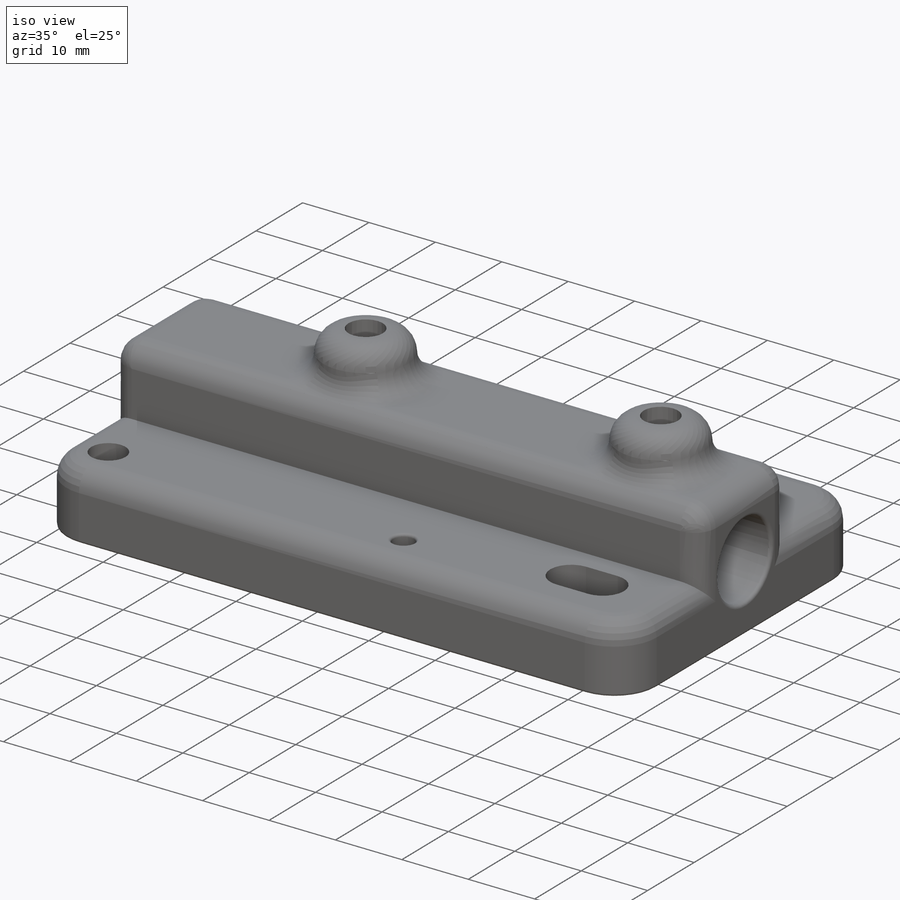
[diagram: iso view]
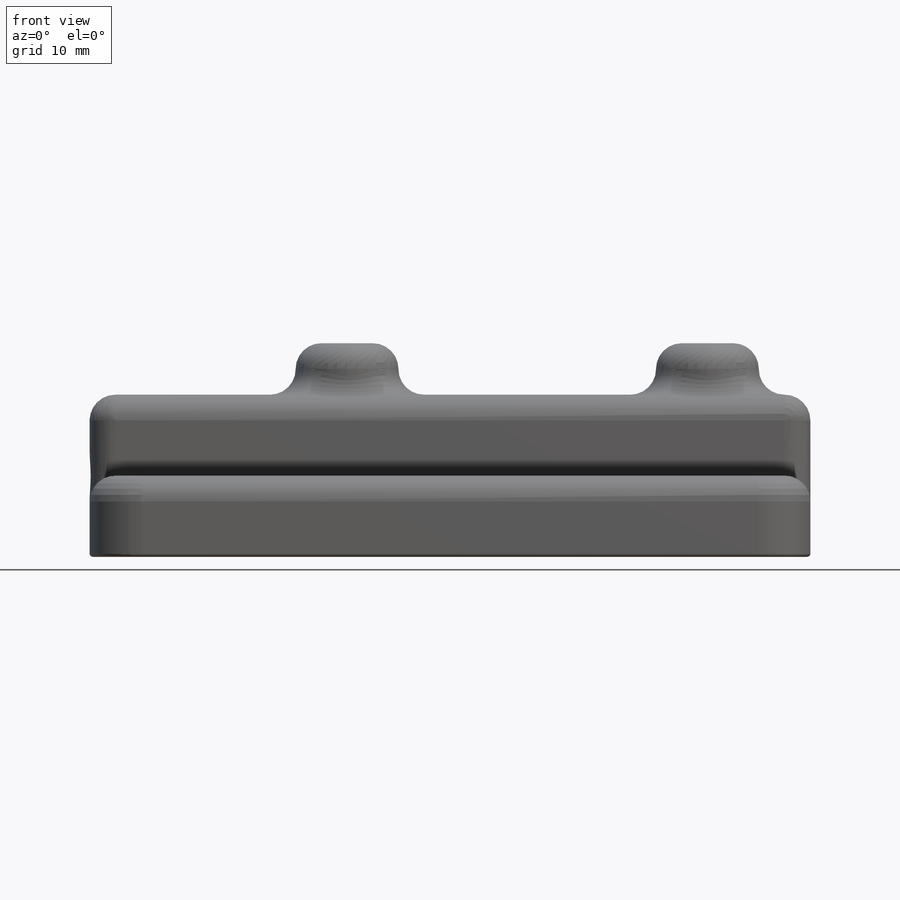
[diagram: front view]
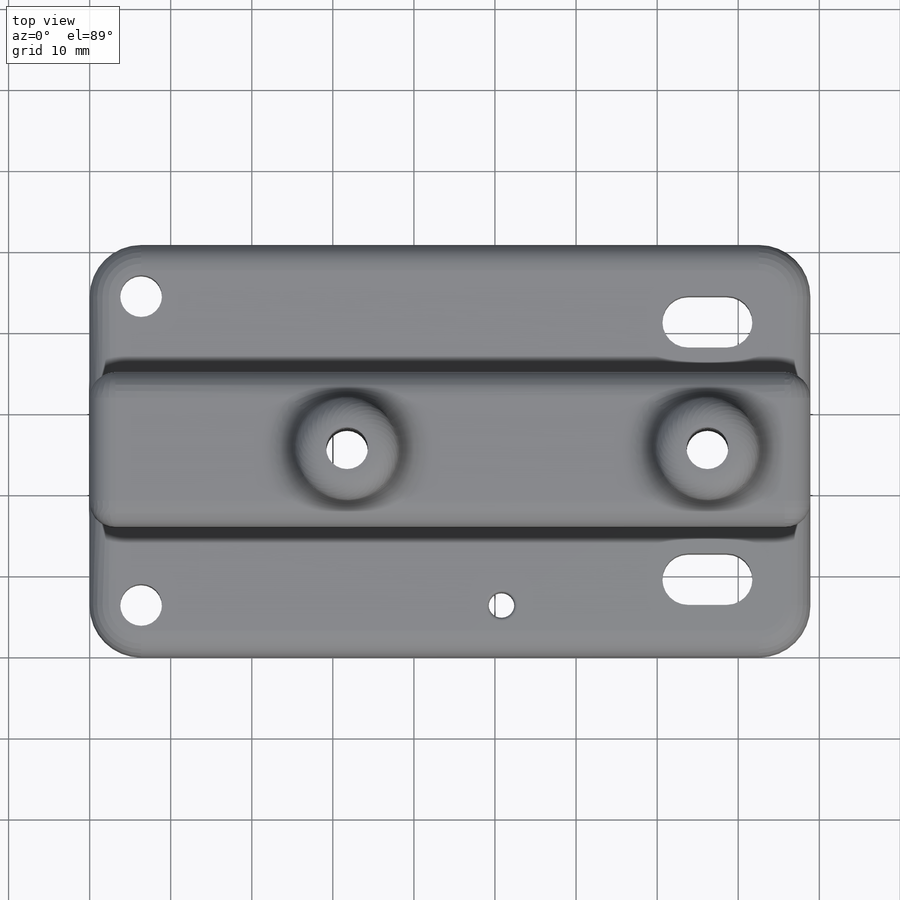
[diagram: top view]
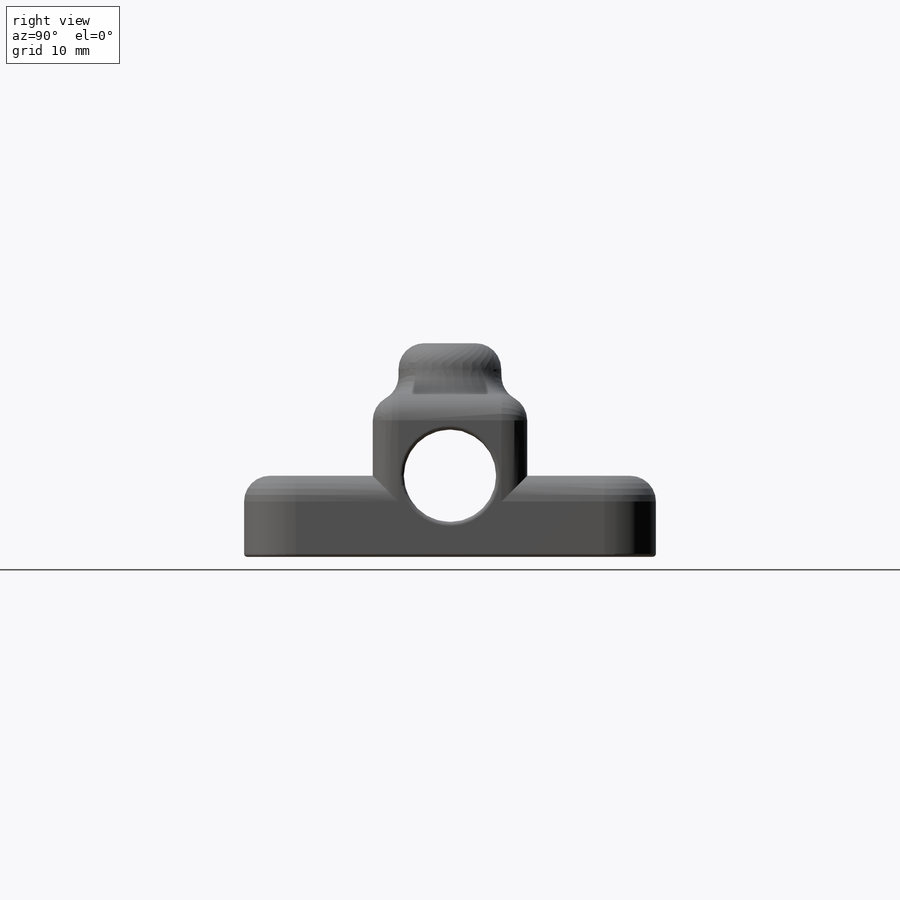
[diagram: right view]
SOLIDWORKS PART (.sldprt)
format: sldprt  version: not decoded by parser v0  size: 663,040 bytes
history: native  units: mm
features: sketch x7, fillet x6, cut_extrude x4, extrude x3, chamfer x2, material x1 (+11 scaffold rows collapsed)
feature tree (34):
  scaffold x11  (default folders/planes/origin — collapsed)
  material  "Material <not specified>"
  sketch  "Sketch1"  dims[D1=88.9mm D2=50.8mm]
  extrude  "Boss-Extrude1"  Depth=10mm
  sketch  "Sketch2"  dims[D1=15.875mm D2=15.875mm]
  extrude  "Boss-Extrude2"  Depth=10mm
  sketch  "Sketch3"  dims[D3=~3.363635mm D1=31.75mm D2=12.7mm]
  cut_extrude  "Cut-Extrude1"  Depth=8.65mm
  sketch  "Sketch8"  dims[D1=~4.831887mm]
  extrude  "Boss-Extrude3"  Depth=6.35mm
  sketch  "Sketch5"  dims[c1.D2=~0.101563mm c1.D4=~2.491023mm c1.D6=~3.640136mm c1.D9=2.2299mm c1.D10=~1.585996mm c1.D1=57.15mm c2.D2=6.35mm c2.D3=6.35mm c3.D2=25.4mm c3.D4=0.0mm c3.D5=25.4mm c3.D6=12.7mm c3.D7=~15.08125mm c3.D8=4.7625mm c3.D9=9.525mm c3.D10=38.1mm]
  cut_extrude  "Cut-Extrude2"  [1 undecoded]
  sketch  "Sketch6"  dims[D1=10.0mm]
  cut_extrude  "Cut-Extrude3"  Depth=25.4mm
  sketch  "Sketch7"  dims[D1=~8.278907mm]
  cut_extrude  "Cut-Extrude4"  Depth=25.4mm
  fillet  "Fillet1"  Radius=3.175mm
  chamfer  "Chamfer1"  Distance=0.8mm Angle=45deg
  chamfer  "Chamfer2"  Distance=1mm Angle=45deg
  fillet  "Fillet2"  Radius=0.5mm
  fillet  "Fillet3"  Radius=0.4mm
  fillet  "Fillet4"  Radius=6.35mm
  fillet  "Fillet5"  Radius=3.175mm
  fillet  "Fillet6"  Radius=2mm
decode coverage: 21 of 22 modeling features carry decoded parameters
note: ~ marks probable driven/reference dimensions
note: 1 parameter value undecoded
note: suppression state not decoded; provenance and decode notes live in map.json
